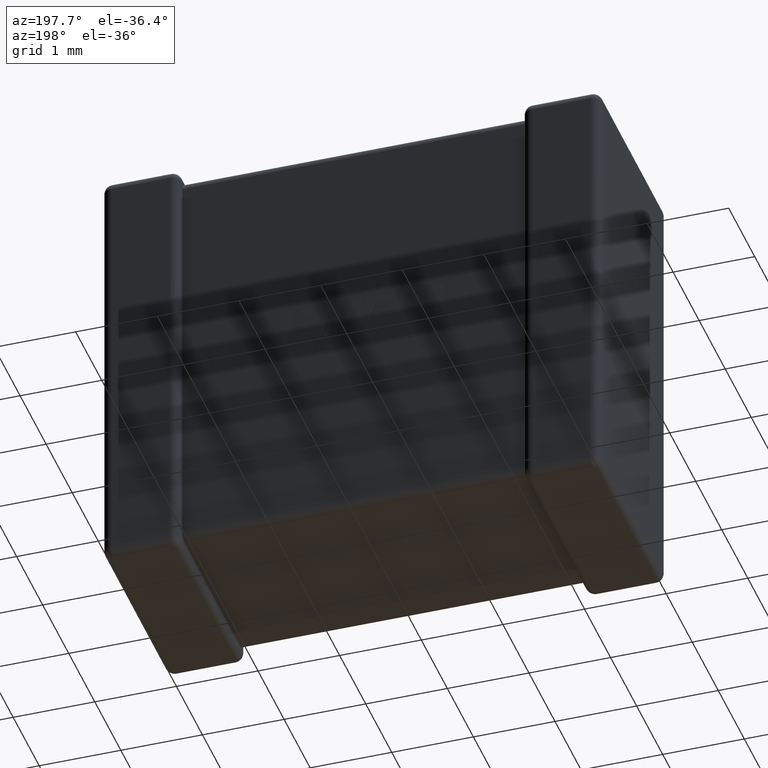
[diagram: clean part render]
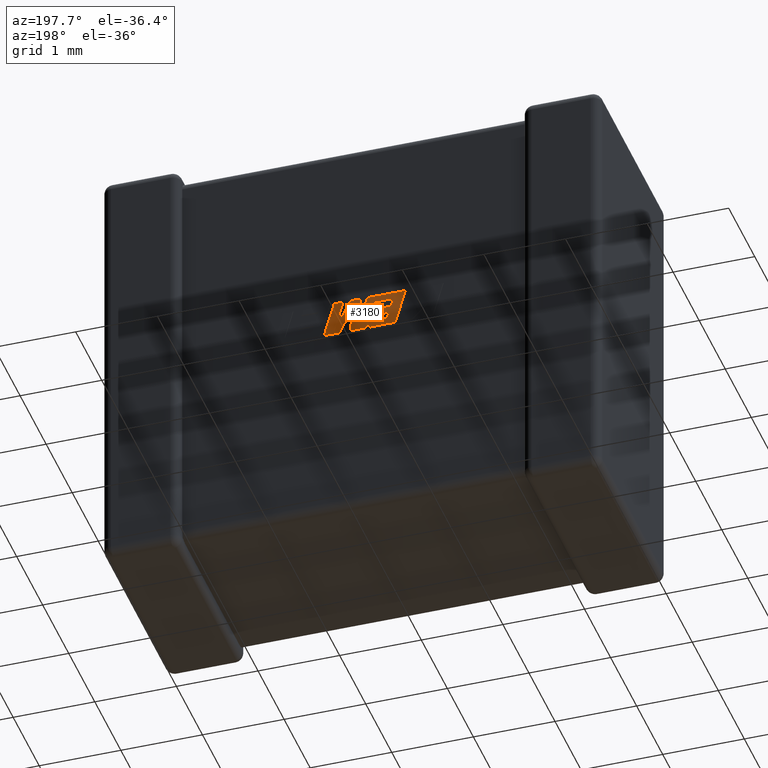
[diagram: same view with one face highlighted and labeled with its STEP entity id]
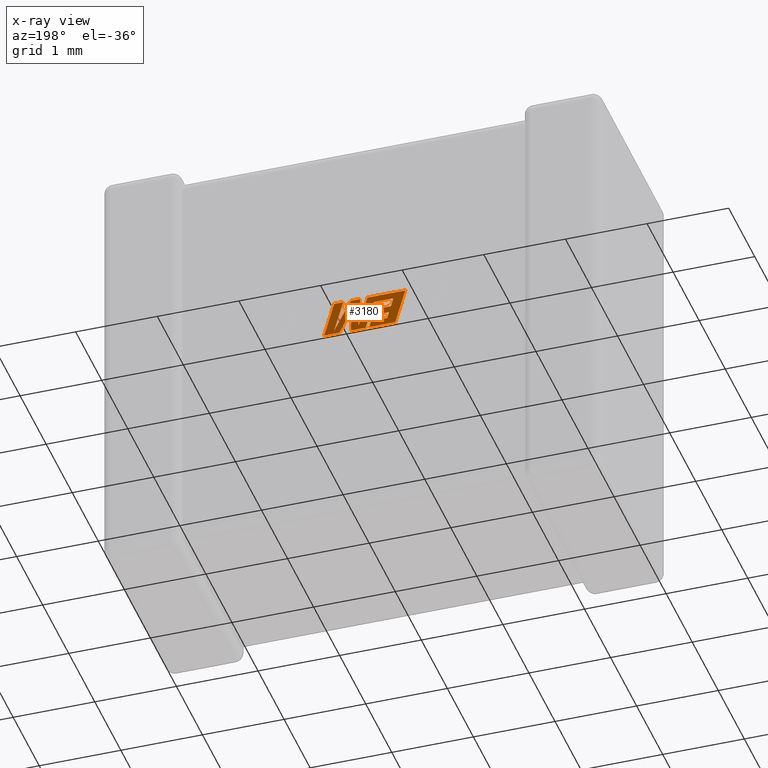
[diagram: x-ray of the same camera — body ghosted, the highlighted face saturated]
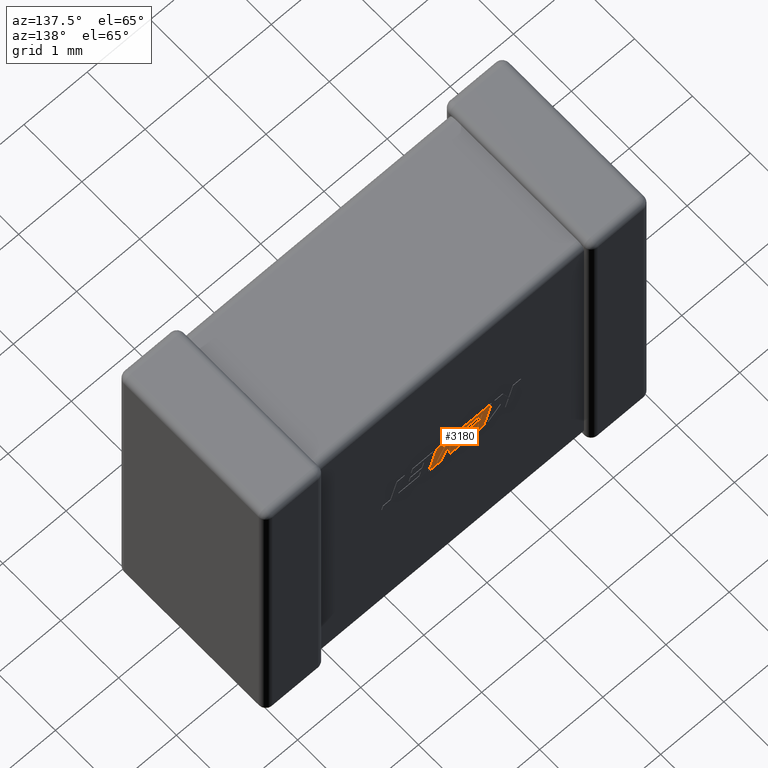
[diagram: same view with one face highlighted and labeled with its STEP entity id]
A machine part, auxiliary view. The second image highlights one B-rep face of the part: STEP entity #3180.
The next image is the same camera in x-ray: the body ghosted, the highlighted face saturated — about 0% of this face is hidden behind the body in this view.
A second angle (auxiliary view) of the same face is appended — the face is thin or edge-on in the first view.
In plain terms, the highlighted planar face has unit normal (0, -1, 0).
Its self-contained STEP definition (entity closure, byte-faithful):
#15 = CARTESIAN_POINT ( 'NONE',  ( 3.411227330224758900, 2.442679999999999700, -2.738018101797654100 ) ) ;
#16 = CARTESIAN_POINT ( 'NONE',  ( 2.801232395251704400, 2.442679999999999700, -2.388467020723880300 ) ) ;
#52 = VECTOR ( 'NONE', #4226, 1000.000000000000000 ) ;
#58 = ORIENTED_EDGE ( 'NONE', *, *, #3558, .T. ) ;
#64 = CARTESIAN_POINT ( 'NONE',  ( 3.068941737194691200, 2.442679999999999700, -2.429621719490298500 ) ) ;
#71 = CARTESIAN_POINT ( 'NONE',  ( 2.880570220824253200, 2.442679999999999700, -2.306340000000000100 ) ) ;
#80 = DIRECTION ( 'NONE',  ( 0.2763139702539146300, 0.0000000000000000000, -0.9610674221107063900 ) ) ;
#124 = EDGE_CURVE ( 'NONE', #3916, #2662, #3137, .T. ) ;
#142 = ORIENTED_EDGE ( 'NONE', *, *, #2244, .T. ) ;
#195 = VECTOR ( 'NONE', #1483, 1000.000000000000000 ) ;
#276 = VECTOR ( 'NONE', #3725, 1000.000000000000000 ) ;
#298 = VERTEX_POINT ( 'NONE', #2483 ) ;
#315 = VECTOR ( 'NONE', #4457, 1000.000000000000100 ) ;
#342 = ORIENTED_EDGE ( 'NONE', *, *, #2267, .T. ) ;
#372 = CARTESIAN_POINT ( 'NONE',  ( 2.777758531761731000, 2.442679999999999700, -2.495755860006286600 ) ) ;
#378 = VECTOR ( 'NONE', #2032, 1000.000000000000000 ) ;
#385 = DIRECTION ( 'NONE',  ( 1.000000000000000000, 0.0000000000000000000, 0.0000000000000000000 ) ) ;
#391 = VECTOR ( 'NONE', #831, 1000.000000000000100 ) ;
#393 = EDGE_CURVE ( 'NONE', #4329, #1041, #1114, .T. ) ;
#394 = LINE ( 'NONE', #1788, #2908 ) ;
#402 = CARTESIAN_POINT ( 'NONE',  ( 2.835311761819844500, 2.442679999999999700, -2.655850391644456500 ) ) ;
#422 = VERTEX_POINT ( 'NONE', #1526 ) ;
#430 = LINE ( 'NONE', #1568, #487 ) ;
#437 = VECTOR ( 'NONE', #3894, 1000.000000000000100 ) ;
#487 = VECTOR ( 'NONE', #1633, 1000.000000000000100 ) ;
#493 = VECTOR ( 'NONE', #883, 1000.000000000000200 ) ;
#527 = DIRECTION ( 'NONE',  ( 0.0000000000000000000, 0.0000000000000000000, -1.000000000000000000 ) ) ;
#543 = CARTESIAN_POINT ( 'NONE',  ( 2.990917330177049300, 2.442679999999999700, -2.690651667455290900 ) ) ;
#546 = ORIENTED_EDGE ( 'NONE', *, *, #2635, .T. ) ;
#707 = EDGE_CURVE ( 'NONE', #2272, #1313, #3177, .T. ) ;
#831 = DIRECTION ( 'NONE',  ( 0.2740217765953990000, 0.0000000000000000000, -0.9617234872620618000 ) ) ;
#837 = EDGE_CURVE ( 'NONE', #1313, #4312, #3648, .T. ) ;
#883 = DIRECTION ( 'NONE',  ( -0.05596501978068185700, 0.0000000000000000000, 0.9984327301130245800 ) ) ;
#924 = DIRECTION ( 'NONE',  ( 1.000000000000000000, 0.0000000000000000000, 0.0000000000000000000 ) ) ;
#956 = CARTESIAN_POINT ( 'NONE',  ( 2.415520223519360200, 2.442679999999999700, -2.306340000000000100 ) ) ;
#969 = VERTEX_POINT ( 'NONE', #4301 ) ;
#984 = VERTEX_POINT ( 'NONE', #372 ) ;
#1032 = LINE ( 'NONE', #3308, #3974 ) ;
#1041 = VERTEX_POINT ( 'NONE', #3238 ) ;
#1084 = ORIENTED_EDGE ( 'NONE', *, *, #3115, .T. ) ;
#1086 = CARTESIAN_POINT ( 'NONE',  ( 3.221896250738492700, 2.442679999999999700, -2.738018101797654100 ) ) ;
#1092 = CARTESIAN_POINT ( 'NONE',  ( 2.638634807381588400, 2.442679999999999700, -2.655850391644456500 ) ) ;
#1106 = DIRECTION ( 'NONE',  ( 0.2732148821746424600, 0.0000000000000000000, -0.9619530280415443700 ) ) ;
#1114 = LINE ( 'NONE', #1394, #2469 ) ;
#1166 = CARTESIAN_POINT ( 'NONE',  ( 2.990917330177049300, 2.442679999999999700, -2.690651667455290900 ) ) ;
#1177 = EDGE_CURVE ( 'NONE', #2773, #3497, #3172, .T. ) ;
#1194 = LINE ( 'NONE', #2874, #2764 ) ;
#1232 = CARTESIAN_POINT ( 'NONE',  ( 3.068941737194691200, 2.442679999999999700, -2.429621719490298500 ) ) ;
#1235 = DIRECTION ( 'NONE',  ( 0.0000000000000000000, -1.000000000000000000, 0.0000000000000000000 ) ) ;
#1272 = ORIENTED_EDGE ( 'NONE', *, *, #4274, .T. ) ;
#1313 = VERTEX_POINT ( 'NONE', #4166 ) ;
#1377 = CARTESIAN_POINT ( 'NONE',  ( 3.084457079766796300, 2.442679999999999700, -2.306340000000000100 ) ) ;
#1394 = CARTESIAN_POINT ( 'NONE',  ( 2.858649118835884900, 2.442679999999999700, -2.738018101797654100 ) ) ;
#1404 = VERTEX_POINT ( 'NONE', #3163 ) ;
#1483 = DIRECTION ( 'NONE',  ( 1.000000000000000000, 0.0000000000000000000, 0.0000000000000000000 ) ) ;
#1503 = LINE ( 'NONE', #4123, #276 ) ;
#1513 = CARTESIAN_POINT ( 'NONE',  ( 3.411227330224758900, 2.442679999999999700, -2.738018101797654100 ) ) ;
#1514 = EDGE_CURVE ( 'NONE', #1041, #3916, #1537, .T. ) ;
#1519 = EDGE_CURVE ( 'NONE', #4312, #422, #1194, .T. ) ;
#1526 = CARTESIAN_POINT ( 'NONE',  ( 3.177420614523705800, 2.442679999999999700, -2.306340000000000100 ) ) ;
#1532 = LINE ( 'NONE', #402, #4532 ) ;
#1537 = LINE ( 'NONE', #3959, #2989 ) ;
#1540 = LINE ( 'NONE', #4057, #315 ) ;
#1543 = EDGE_CURVE ( 'NONE', #1404, #3803, #2664, .T. ) ;
#1568 = CARTESIAN_POINT ( 'NONE',  ( 2.615271199120353400, 2.442679999999999700, -2.575558332963582500 ) ) ;
#1620 = DIRECTION ( 'NONE',  ( -1.000000000000000000, 0.0000000000000000000, 0.0000000000000000000 ) ) ;
#1633 = DIRECTION ( 'NONE',  ( 0.2793947940878428500, 0.0000000000000000000, -0.9601763114327555000 ) ) ;
#1642 = LINE ( 'NONE', #1704, #2659 ) ;
#1699 = EDGE_CURVE ( 'NONE', #4470, #2349, #2294, .T. ) ;
#1704 = CARTESIAN_POINT ( 'NONE',  ( 3.221896250738492700, 2.442679999999999700, -2.738018101797654100 ) ) ;
#1713 = CARTESIAN_POINT ( 'NONE',  ( 2.800552488001333300, 2.442679999999999700, -2.575558332963582500 ) ) ;
#1731 = VERTEX_POINT ( 'NONE', #1232 ) ;
#1757 = VECTOR ( 'NONE', #3232, 1000.000000000000000 ) ;
#1788 = CARTESIAN_POINT ( 'NONE',  ( 3.177420614523705800, 2.442679999999999700, -2.306340000000000100 ) ) ;
#1840 = VECTOR ( 'NONE', #2188, 1000.000000000000100 ) ;
#1862 = DIRECTION ( 'NONE',  ( 0.05375259206908433700, 0.0000000000000000000, -0.9985542843760946100 ) ) ;
#1908 = CARTESIAN_POINT ( 'NONE',  ( 2.800552488001333300, 2.442679999999999700, -2.575558332963582500 ) ) ;
#1942 = ORIENTED_EDGE ( 'NONE', *, *, #837, .T. ) ;
#1955 = CARTESIAN_POINT ( 'NONE',  ( 2.969375558335647400, 2.442679999999999700, -2.306340000000000100 ) ) ;
#1997 = VECTOR ( 'NONE', #924, 1000.000000000000000 ) ;
#2032 = DIRECTION ( 'NONE',  ( 1.000000000000000000, 0.0000000000000000000, 0.0000000000000000000 ) ) ;
#2064 = ORIENTED_EDGE ( 'NONE', *, *, #393, .T. ) ;
#2079 = DIRECTION ( 'NONE',  ( -0.4443210308329503300, 0.0000000000000000000, 0.8958676361826809500 ) ) ;
#2116 = DIRECTION ( 'NONE',  ( -1.000000000000000000, 0.0000000000000000000, 0.0000000000000000000 ) ) ;
#2126 = EDGE_LOOP ( 'NONE', ( #546, #3366, #4676, #1084, #4565, #1272, #4261, #4150, #58, #4118, #342, #3852, #3349, #2064, #4495, #3113, #4193, #4496, #4423, #1942, #2448, #3176, #142 ) ) ;
#2178 = LINE ( 'NONE', #3669, #1840 ) ;
#2188 = DIRECTION ( 'NONE',  ( 0.2746459304917039400, 0.0000000000000000000, -0.9615454294334439000 ) ) ;
#2244 = EDGE_CURVE ( 'NONE', #298, #4613, #1032, .T. ) ;
#2267 = EDGE_CURVE ( 'NONE', #3497, #1404, #430, .T. ) ;
#2272 = VERTEX_POINT ( 'NONE', #1955 ) ;
#2294 = LINE ( 'NONE', #4119, #391 ) ;
#2299 = VECTOR ( 'NONE', #3326, 1000.000000000000200 ) ;
#2349 = VERTEX_POINT ( 'NONE', #4493 ) ;
#2372 = CARTESIAN_POINT ( 'NONE',  ( 2.901706411273205200, 2.442679999999999700, -2.738018101797654100 ) ) ;
#2436 = VERTEX_POINT ( 'NONE', #2372 ) ;
#2448 = ORIENTED_EDGE ( 'NONE', *, *, #1519, .T. ) ;
#2469 = VECTOR ( 'NONE', #2116, 1000.000000000000000 ) ;
#2483 = CARTESIAN_POINT ( 'NONE',  ( 3.287116692994520100, 2.442679999999999700, -2.306340000000000100 ) ) ;
#2524 = LINE ( 'NONE', #64, #4089 ) ;
#2635 = EDGE_CURVE ( 'NONE', #4613, #2918, #3162, .T. ) ;
#2658 = CARTESIAN_POINT ( 'NONE',  ( -0.0004046433776275053200, 2.442679999999998900, -0.8546536584304120800 ) ) ;
#2659 = VECTOR ( 'NONE', #2079, 1000.000000000000000 ) ;
#2662 = VERTEX_POINT ( 'NONE', #3030 ) ;
#2664 = LINE ( 'NONE', #1092, #195 ) ;
#2692 = CARTESIAN_POINT ( 'NONE',  ( 2.415520223519360200, 2.442679999999999700, -2.306340000000000100 ) ) ;
#2764 = VECTOR ( 'NONE', #2903, 1000.000000000000200 ) ;
#2773 = VERTEX_POINT ( 'NONE', #1713 ) ;
#2829 = EDGE_CURVE ( 'NONE', #2918, #1731, #1642, .T. ) ;
#2874 = CARTESIAN_POINT ( 'NONE',  ( 3.288313749777273600, 2.442679999999999700, -2.692502380243609200 ) ) ;
#2891 = LINE ( 'NONE', #4173, #378 ) ;
#2903 = DIRECTION ( 'NONE',  ( -0.2760118818968593200, 0.0000000000000000000, 0.9611542233438680200 ) ) ;
#2908 = VECTOR ( 'NONE', #385, 1000.000000000000000 ) ;
#2918 = VERTEX_POINT ( 'NONE', #1086 ) ;
#2922 = CARTESIAN_POINT ( 'NONE',  ( 2.835311761819844500, 2.442679999999999700, -2.655850391644456500 ) ) ;
#2989 = VECTOR ( 'NONE', #3630, 1000.000000000000100 ) ;
#3030 = CARTESIAN_POINT ( 'NONE',  ( 2.880570220824253200, 2.442679999999999700, -2.306340000000000100 ) ) ;
#3107 = EDGE_CURVE ( 'NONE', #2662, #4244, #4336, .T. ) ;
#3113 = ORIENTED_EDGE ( 'NONE', *, *, #124, .T. ) ;
#3115 = EDGE_CURVE ( 'NONE', #969, #2436, #1503, .T. ) ;
#3137 = LINE ( 'NONE', #956, #52 ) ;
#3162 = LINE ( 'NONE', #15, #1757 ) ;
#3163 = CARTESIAN_POINT ( 'NONE',  ( 2.638634807381588400, 2.442679999999999700, -2.655850391644456500 ) ) ;
#3172 = LINE ( 'NONE', #1908, #4543 ) ;
#3176 = ORIENTED_EDGE ( 'NONE', *, *, #3583, .T. ) ;
#3177 = LINE ( 'NONE', #3838, #1997 ) ;
#3180 = ADVANCED_FACE ( 'NONE', ( #4524 ), #3765, .F. ) ;
#3218 = CARTESIAN_POINT ( 'NONE',  ( 2.561933919047046300, 2.442679999999999700, -2.388467020723880300 ) ) ;
#3232 = DIRECTION ( 'NONE',  ( -1.000000000000000000, 0.0000000000000000000, 0.0000000000000000000 ) ) ;
#3238 = CARTESIAN_POINT ( 'NONE',  ( 2.539739803763990000, 2.442679999999999700, -2.738018101797654100 ) ) ;
#3308 = CARTESIAN_POINT ( 'NONE',  ( 3.287116692994520100, 2.442679999999999700, -2.306340000000000100 ) ) ;
#3326 = DIRECTION ( 'NONE',  ( 0.2759782365590801000, 0.0000000000000000000, -0.9611638845408936300 ) ) ;
#3349 = ORIENTED_EDGE ( 'NONE', *, *, #4515, .T. ) ;
#3366 = ORIENTED_EDGE ( 'NONE', *, *, #2829, .T. ) ;
#3497 = VERTEX_POINT ( 'NONE', #3556 ) ;
#3541 = VERTEX_POINT ( 'NONE', #16 ) ;
#3556 = CARTESIAN_POINT ( 'NONE',  ( 2.615271199120353400, 2.442679999999999700, -2.575558332963582500 ) ) ;
#3558 = EDGE_CURVE ( 'NONE', #984, #2773, #2178, .T. ) ;
#3583 = EDGE_CURVE ( 'NONE', #422, #298, #394, .T. ) ;
#3630 = DIRECTION ( 'NONE',  ( -0.2765379750249969400, 0.0000000000000000000, 0.9610029908221275900 ) ) ;
#3648 = LINE ( 'NONE', #1377, #437 ) ;
#3669 = CARTESIAN_POINT ( 'NONE',  ( 2.777758531761731000, 2.442679999999999700, -2.495755860006286600 ) ) ;
#3725 = DIRECTION ( 'NONE',  ( -1.000000000000000000, 0.0000000000000000000, 0.0000000000000000000 ) ) ;
#3737 = EDGE_CURVE ( 'NONE', #1731, #969, #2524, .T. ) ;
#3765 = PLANE ( 'NONE',  #4354 ) ;
#3803 = VERTEX_POINT ( 'NONE', #2922 ) ;
#3838 = CARTESIAN_POINT ( 'NONE',  ( 2.969375558335647400, 2.442679999999999700, -2.306340000000000100 ) ) ;
#3852 = ORIENTED_EDGE ( 'NONE', *, *, #1543, .T. ) ;
#3894 = DIRECTION ( 'NONE',  ( 0.4668459304955247000, 0.0000000000000000000, -0.8843386665637592600 ) ) ;
#3916 = VERTEX_POINT ( 'NONE', #2692 ) ;
#3930 = EDGE_CURVE ( 'NONE', #4244, #2272, #4428, .T. ) ;
#3958 = EDGE_CURVE ( 'NONE', #2349, #984, #2891, .T. ) ;
#3959 = CARTESIAN_POINT ( 'NONE',  ( 2.539739803763990000, 2.442679999999999700, -2.738018101797654100 ) ) ;
#3974 = VECTOR ( 'NONE', #80, 1000.000000000000100 ) ;
#4027 = VECTOR ( 'NONE', #4161, 1000.000000000000000 ) ;
#4057 = CARTESIAN_POINT ( 'NONE',  ( 2.901706411273205200, 2.442679999999999700, -2.738018101797654100 ) ) ;
#4089 = VECTOR ( 'NONE', #1862, 1000.000000000000100 ) ;
#4118 = ORIENTED_EDGE ( 'NONE', *, *, #1177, .T. ) ;
#4119 = CARTESIAN_POINT ( 'NONE',  ( 2.561933919047046300, 2.442679999999999700, -2.388467020723880300 ) ) ;
#4123 = CARTESIAN_POINT ( 'NONE',  ( 3.085542842605907100, 2.442679999999999700, -2.738018101797654100 ) ) ;
#4124 = CARTESIAN_POINT ( 'NONE',  ( 3.288313749777273600, 2.442679999999999700, -2.692502380243609200 ) ) ;
#4150 = ORIENTED_EDGE ( 'NONE', *, *, #3958, .T. ) ;
#4161 = DIRECTION ( 'NONE',  ( -1.000000000000000000, 0.0000000000000000000, 0.0000000000000000000 ) ) ;
#4166 = CARTESIAN_POINT ( 'NONE',  ( 3.084457079766796300, 2.442679999999999700, -2.306340000000000100 ) ) ;
#4170 = EDGE_CURVE ( 'NONE', #2436, #3541, #1540, .T. ) ;
#4172 = CARTESIAN_POINT ( 'NONE',  ( 2.858649118835884900, 2.442679999999999700, -2.738018101797654100 ) ) ;
#4173 = CARTESIAN_POINT ( 'NONE',  ( 2.592503494125973300, 2.442679999999999700, -2.495755860006286600 ) ) ;
#4193 = ORIENTED_EDGE ( 'NONE', *, *, #3107, .T. ) ;
#4226 = DIRECTION ( 'NONE',  ( 1.000000000000000000, 0.0000000000000000000, 0.0000000000000000000 ) ) ;
#4244 = VERTEX_POINT ( 'NONE', #1166 ) ;
#4261 = ORIENTED_EDGE ( 'NONE', *, *, #1699, .T. ) ;
#4274 = EDGE_CURVE ( 'NONE', #3541, #4470, #4311, .T. ) ;
#4301 = CARTESIAN_POINT ( 'NONE',  ( 3.085542842605907100, 2.442679999999999700, -2.738018101797654100 ) ) ;
#4311 = LINE ( 'NONE', #4554, #4027 ) ;
#4312 = VERTEX_POINT ( 'NONE', #4124 ) ;
#4329 = VERTEX_POINT ( 'NONE', #4172 ) ;
#4336 = LINE ( 'NONE', #71, #2299 ) ;
#4354 = AXIS2_PLACEMENT_3D ( 'NONE', #2658, #1235, #527 ) ;
#4423 = ORIENTED_EDGE ( 'NONE', *, *, #707, .T. ) ;
#4428 = LINE ( 'NONE', #543, #493 ) ;
#4457 = DIRECTION ( 'NONE',  ( -0.2762517575166416100, 0.0000000000000000000, 0.9610853065513833600 ) ) ;
#4470 = VERTEX_POINT ( 'NONE', #3218 ) ;
#4493 = CARTESIAN_POINT ( 'NONE',  ( 2.592503494125973300, 2.442679999999999700, -2.495755860006286600 ) ) ;
#4495 = ORIENTED_EDGE ( 'NONE', *, *, #1514, .T. ) ;
#4496 = ORIENTED_EDGE ( 'NONE', *, *, #3930, .T. ) ;
#4515 = EDGE_CURVE ( 'NONE', #3803, #4329, #1532, .T. ) ;
#4524 = FACE_OUTER_BOUND ( 'NONE', #2126, .T. ) ;
#4532 = VECTOR ( 'NONE', #1106, 1000.000000000000000 ) ;
#4543 = VECTOR ( 'NONE', #1620, 1000.000000000000000 ) ;
#4554 = CARTESIAN_POINT ( 'NONE',  ( 2.801232395251704400, 2.442679999999999700, -2.388467020723880300 ) ) ;
#4565 = ORIENTED_EDGE ( 'NONE', *, *, #4170, .T. ) ;
#4613 = VERTEX_POINT ( 'NONE', #1513 ) ;
#4676 = ORIENTED_EDGE ( 'NONE', *, *, #3737, .T. ) ;